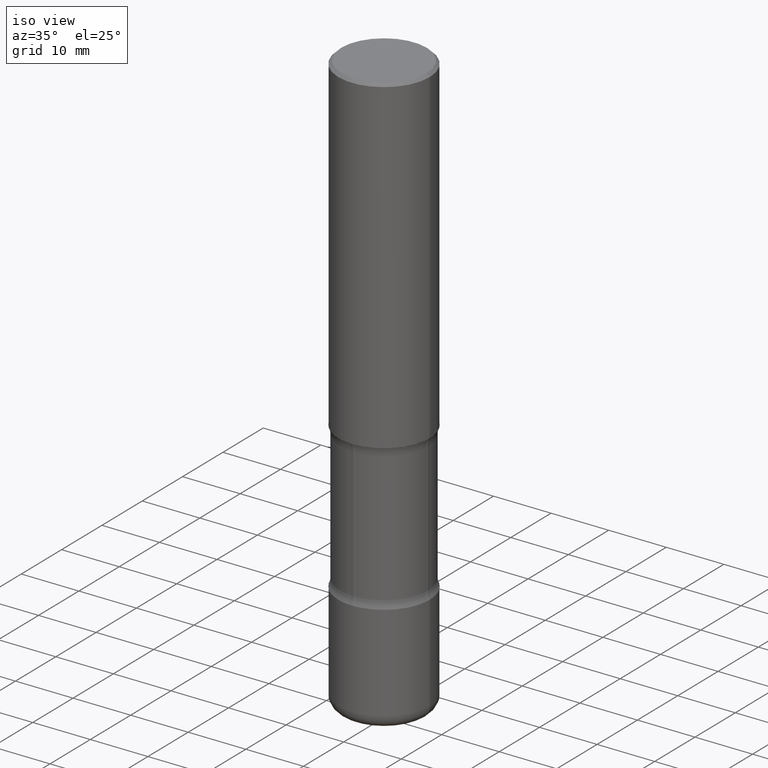
[diagram: clean part render]
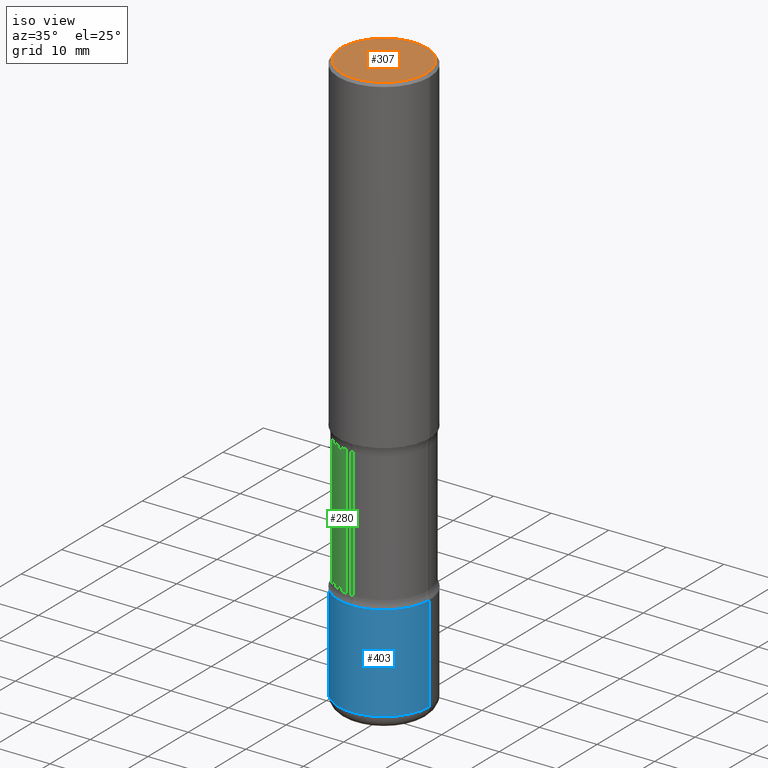
[diagram: same view with three faces highlighted in distinct colors, each labeled with its STEP entity id]
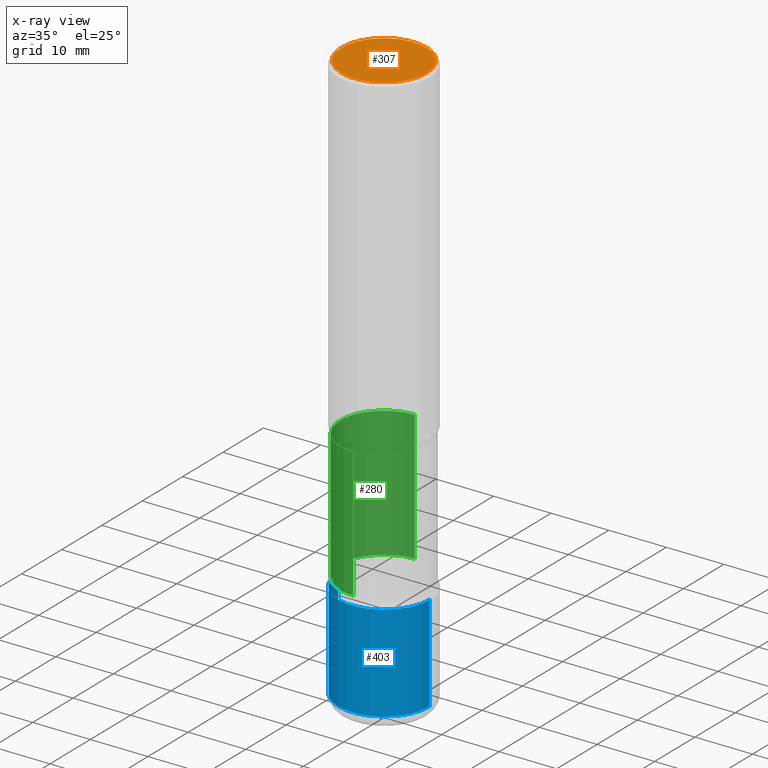
[diagram: x-ray of the same camera — body ghosted, the three highlighted faces saturated]
A machine part, iso view with three faces highlighted in distinct colors.
The next image is the same camera in x-ray (body ghosted, the three faces saturated) — at least one of them is partly hidden behind the body in this view.
Their STEP definitions:

[orange] entity #307 — the highlighted planar face has unit normal (0, -0, -1).
#12 = EDGE_CURVE ( 'NONE', #404, #464, #676, .T. ) ;
#20 = PLANE ( 'NONE',  #344 ) ;
#77 = CIRCLE ( 'NONE', #155, 0.2924999999999997047 ) ;
#106 = DIRECTION ( 'NONE',  ( 1.000000000000000000, -6.982962677686265133E-15, 4.876067333457694521E-29 ) ) ;
#122 = DIRECTION ( 'NONE',  ( -2.445468806185136597E-29, 3.491481338843145583E-15, 1.000000000000000000 ) ) ;
#154 = DIRECTION ( 'NONE',  ( 2.438088387897960049E-29, -3.491481338843145188E-15, -1.000000000000000000 ) ) ;
#155 = AXIS2_PLACEMENT_3D ( 'NONE', #281, #526, #650 ) ;
#167 = CARTESIAN_POINT ( 'NONE',  ( 2.042516583223230567E-15, 0.2924999999999997047, -1.016989779121518604E-15 ) ) ;
#189 = AXIS2_PLACEMENT_3D ( 'NONE', #301, #122, #106 ) ;
#216 = FACE_OUTER_BOUND ( 'NONE', #308, .T. ) ;
#242 = CARTESIAN_POINT ( 'NONE',  ( -0.2924999999999997047, 2.077431396611662216E-15, 8.537024980186416602E-18 ) ) ;
#243 = ORIENTED_EDGE ( 'NONE', *, *, #303, .T. ) ;
#281 = CARTESIAN_POINT ( 'NONE',  ( -2.087702828670439639E-46, 2.980686340760894400E-32, 8.537024980200822558E-18 ) ) ;
#301 = CARTESIAN_POINT ( 'NONE',  ( -2.087702828670439639E-46, 2.980686340760894400E-32, 8.537024980200822558E-18 ) ) ;
#303 = EDGE_CURVE ( 'NONE', #464, #404, #77, .T. ) ;
#307 = ADVANCED_FACE ( 'NONE', ( #216 ), #20, .F. ) ;
#308 = EDGE_LOOP ( 'NONE', ( #243, #467 ) ) ;
#344 = AXIS2_PLACEMENT_3D ( 'NONE', #167, #154, #775 ) ;
#404 = VERTEX_POINT ( 'NONE', #542 ) ;
#464 = VERTEX_POINT ( 'NONE', #242 ) ;
#467 = ORIENTED_EDGE ( 'NONE', *, *, #12, .T. ) ;
#526 = DIRECTION ( 'NONE',  ( -2.445468806185136597E-29, 3.491481338843145583E-15, 1.000000000000000000 ) ) ;
#542 = CARTESIAN_POINT ( 'NONE',  ( 0.2924999999999997047, -2.110215457714317959E-15, 8.537024980215342529E-18 ) ) ;
#650 = DIRECTION ( 'NONE',  ( 1.000000000000000000, -6.982962677686265133E-15, 4.876067333457694521E-29 ) ) ;
#676 = CIRCLE ( 'NONE', #189, 0.2924999999999997047 ) ;
#775 = DIRECTION ( 'NONE',  ( -1.000000000000000000, 6.982962677686265922E-15, -4.876176775795935793E-29 ) ) ;

[blue] entity #403 — the highlighted cylindrical surface (partial cylindrical patch) has radius 7.9375 mm, axis along (-0, 0, 1).
#21 = AXIS2_PLACEMENT_3D ( 'NONE', #600, #278, #392 ) ;
#42 = CARTESIAN_POINT ( 'NONE',  ( 0.000000000000000000, 0.000000000000000000, 0.000000000000000000 ) ) ;
#47 = CIRCLE ( 'NONE', #21, 0.3125000000000000000 ) ;
#120 = VERTEX_POINT ( 'NONE', #251 ) ;
#129 = CIRCLE ( 'NONE', #472, 0.3125000000000000000 ) ;
#150 = VERTEX_POINT ( 'NONE', #446 ) ;
#179 = CARTESIAN_POINT ( 'NONE',  ( 0.3125000000000000000, -1.583386787165366057E-14, -3.910000000000000142 ) ) ;
#188 = VERTEX_POINT ( 'NONE', #318 ) ;
#191 = AXIS2_PLACEMENT_3D ( 'NONE', #42, #292, #352 ) ;
#249 = DIRECTION ( 'NONE',  ( -2.445468806185136877E-29, 3.491481338843145188E-15, 1.000000000000000000 ) ) ;
#251 = CARTESIAN_POINT ( 'NONE',  ( 0.3125000000000000000, -1.352949018801718277E-14, -3.250000000000000000 ) ) ;
#265 = EDGE_LOOP ( 'NONE', ( #533, #478, #456, #411 ) ) ;
#273 = VECTOR ( 'NONE', #562, 39.37007874015748143 ) ;
#278 = DIRECTION ( 'NONE',  ( -2.445468806185136597E-29, 3.491481338843145583E-15, 1.000000000000000000 ) ) ;
#292 = DIRECTION ( 'NONE',  ( -2.445468806185136597E-29, 3.491481338843145583E-15, 1.000000000000000000 ) ) ;
#306 = LINE ( 'NONE', #555, #462 ) ;
#318 = CARTESIAN_POINT ( 'NONE',  ( -0.3125000000000000000, -1.027905714380814945E-14, -3.250000000000000000 ) ) ;
#352 = DIRECTION ( 'NONE',  ( 1.000000000000000000, -6.982962677686266711E-15, 4.876176775795936353E-29 ) ) ;
#372 = EDGE_CURVE ( 'NONE', #150, #513, #47, .T. ) ;
#392 = DIRECTION ( 'NONE',  ( 1.000000000000000000, -6.982962677686269077E-15, 0.000000000000000000 ) ) ;
#403 = ADVANCED_FACE ( 'NONE', ( #713 ), #710, .T. ) ;
#411 = ORIENTED_EDGE ( 'NONE', *, *, #578, .F. ) ;
#441 = CARTESIAN_POINT ( 'NONE',  ( 0.3125000000000000000, -2.182175836776958347E-15, 1.523805242436230075E-29 ) ) ;
#446 = CARTESIAN_POINT ( 'NONE',  ( -0.3125000000000000000, -1.143124598562638756E-14, -3.910000000000000142 ) ) ;
#456 = ORIENTED_EDGE ( 'NONE', *, *, #499, .T. ) ;
#462 = VECTOR ( 'NONE', #249, 39.37007874015748143 ) ;
#472 = AXIS2_PLACEMENT_3D ( 'NONE', #794, #686, #488 ) ;
#478 = ORIENTED_EDGE ( 'NONE', *, *, #372, .T. ) ;
#488 = DIRECTION ( 'NONE',  ( 1.000000000000000000, -6.982962677686269077E-15, 0.000000000000000000 ) ) ;
#499 = EDGE_CURVE ( 'NONE', #513, #120, #631, .T. ) ;
#513 = VERTEX_POINT ( 'NONE', #179 ) ;
#533 = ORIENTED_EDGE ( 'NONE', *, *, #601, .F. ) ;
#555 = CARTESIAN_POINT ( 'NONE',  ( -0.3125000000000000000, 2.220446049250313081E-15, -1.537167215704658232E-29 ) ) ;
#562 = DIRECTION ( 'NONE',  ( -2.445468806185136877E-29, 3.491481338843145188E-15, 1.000000000000000000 ) ) ;
#578 = EDGE_CURVE ( 'NONE', #188, #120, #129, .T. ) ;
#600 = CARTESIAN_POINT ( 'NONE',  ( 9.561783032183883600E-29, -1.365169203487670064E-14, -3.910000000000000142 ) ) ;
#601 = EDGE_CURVE ( 'NONE', #150, #188, #306, .T. ) ;
#631 = LINE ( 'NONE', #441, #273 ) ;
#686 = DIRECTION ( 'NONE',  ( -2.445468806185136597E-29, 3.491481338843145583E-15, 1.000000000000000000 ) ) ;
#710 = CYLINDRICAL_SURFACE ( 'NONE', #191, 0.3125000000000000000 ) ;
#713 = FACE_OUTER_BOUND ( 'NONE', #265, .T. ) ;
#794 = CARTESIAN_POINT ( 'NONE',  ( 7.947773620101693940E-29, -1.134731435124022443E-14, -3.250000000000000000 ) ) ;

[green] entity #280 — the highlighted cylindrical surface (partial cylindrical patch) has radius 7.62 mm, axis along (0, -0, -1).
#25 = CIRCLE ( 'NONE', #130, 0.2999999999999997113 ) ;
#59 = CARTESIAN_POINT ( 'NONE',  ( 2.094888803305975071E-15, 0.2999999999999857225, -3.993321402834704603 ) ) ;
#71 = CARTESIAN_POINT ( 'NONE',  ( -2.058149399331359362E-15, -0.3000000000000135891, -3.993321402834702383 ) ) ;
#74 = EDGE_CURVE ( 'NONE', #656, #731, #356, .T. ) ;
#130 = AXIS2_PLACEMENT_3D ( 'NONE', #345, #164, #347 ) ;
#140 = CARTESIAN_POINT ( 'NONE',  ( 2.094888803305933261E-15, 0.2999999999999915512, -2.304486236794260456 ) ) ;
#164 = DIRECTION ( 'NONE',  ( 2.446204602497214261E-29, -3.490427636645325052E-15, -1.000000000000000000 ) ) ;
#177 = CIRCLE ( 'NONE', #436, 0.2999999999999996003 ) ;
#195 = EDGE_CURVE ( 'NONE', #791, #656, #177, .T. ) ;
#256 = DIRECTION ( 'NONE',  ( 6.982962677686265133E-15, 1.000000000000000000, -3.642463991552355691E-15 ) ) ;
#280 = ADVANCED_FACE ( 'NONE', ( #396 ), #646, .T. ) ;
#314 = DIRECTION ( 'NONE',  ( 2.446204602497214261E-29, -3.490427636645325052E-15, -1.000000000000000000 ) ) ;
#332 = ORIENTED_EDGE ( 'NONE', *, *, #195, .T. ) ;
#339 = DIRECTION ( 'NONE',  ( 6.982962677686266711E-15, 1.000000000000000000, -3.642463991552354902E-15 ) ) ;
#345 = CARTESIAN_POINT ( 'NONE',  ( 7.814489136882825086E-29, -1.115713408451673984E-14, -3.195513763205740432 ) ) ;
#347 = DIRECTION ( 'NONE',  ( 6.982962677686266711E-15, 1.000000000000000000, -3.642463991552354113E-15 ) ) ;
#356 = LINE ( 'NONE', #59, #503 ) ;
#360 = ORIENTED_EDGE ( 'NONE', *, *, #506, .F. ) ;
#382 = VECTOR ( 'NONE', #314, 39.37007874015748143 ) ;
#384 = DIRECTION ( 'NONE',  ( 2.446204602497214261E-29, -3.490427636645325052E-15, -1.000000000000000000 ) ) ;
#396 = FACE_OUTER_BOUND ( 'NONE', #556, .T. ) ;
#436 = AXIS2_PLACEMENT_3D ( 'NONE', #444, #384, #256 ) ;
#444 = CARTESIAN_POINT ( 'NONE',  ( 5.634853500823350214E-29, -8.047066981318384355E-15, -2.304486236794259568 ) ) ;
#503 = VECTOR ( 'NONE', #782, 39.37007874015748143 ) ;
#506 = EDGE_CURVE ( 'NONE', #791, #802, #616, .T. ) ;
#535 = ORIENTED_EDGE ( 'NONE', *, *, #74, .T. ) ;
#546 = CARTESIAN_POINT ( 'NONE',  ( -2.101027511817474585E-15, -0.3000000000000076494, -2.304486236794258236 ) ) ;
#556 = EDGE_LOOP ( 'NONE', ( #360, #332, #535, #617 ) ) ;
#583 = CARTESIAN_POINT ( 'NONE',  ( 2.094888803305956138E-15, 0.2999999999999885536, -3.195513763205741764 ) ) ;
#589 = DIRECTION ( 'NONE',  ( 2.446204602497214261E-29, -3.490427636645325052E-15, -1.000000000000000000 ) ) ;
#599 = CARTESIAN_POINT ( 'NONE',  ( -2.101027511817452497E-15, -0.3000000000000109246, -3.195513763205739544 ) ) ;
#616 = LINE ( 'NONE', #71, #382 ) ;
#617 = ORIENTED_EDGE ( 'NONE', *, *, #795, .F. ) ;
#646 = CYLINDRICAL_SURFACE ( 'NONE', #777, 0.2999999999999996558 ) ;
#656 = VERTEX_POINT ( 'NONE', #140 ) ;
#664 = CARTESIAN_POINT ( 'NONE',  ( 9.766089856850630778E-29, -1.394182391860444343E-14, -3.993321402834703271 ) ) ;
#731 = VERTEX_POINT ( 'NONE', #583 ) ;
#777 = AXIS2_PLACEMENT_3D ( 'NONE', #664, #589, #339 ) ;
#782 = DIRECTION ( 'NONE',  ( 2.446204602497214261E-29, -3.490427636645325052E-15, -1.000000000000000000 ) ) ;
#791 = VERTEX_POINT ( 'NONE', #546 ) ;
#795 = EDGE_CURVE ( 'NONE', #802, #731, #25, .T. ) ;
#802 = VERTEX_POINT ( 'NONE', #599 ) ;